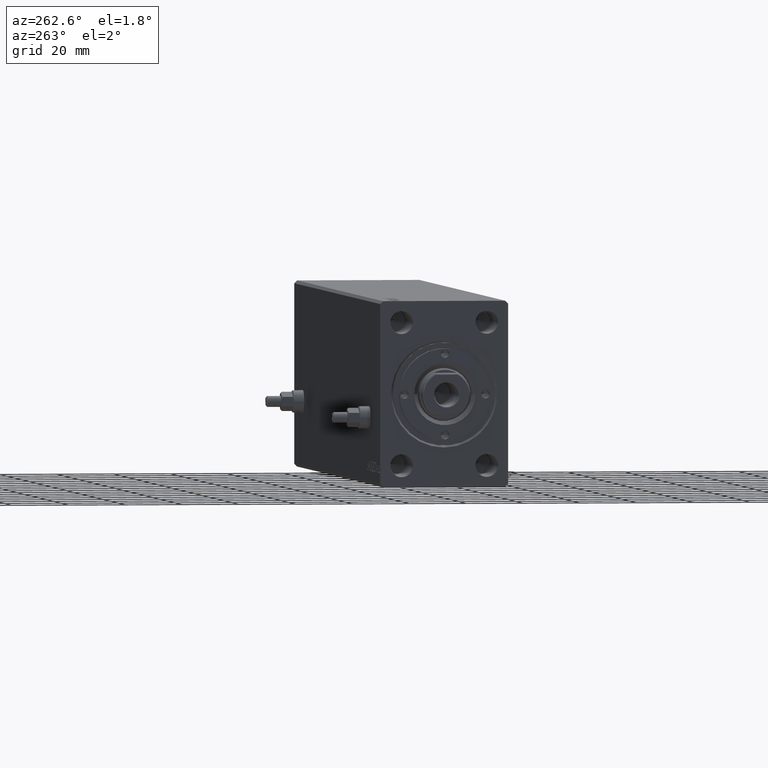
[diagram: clean part render]
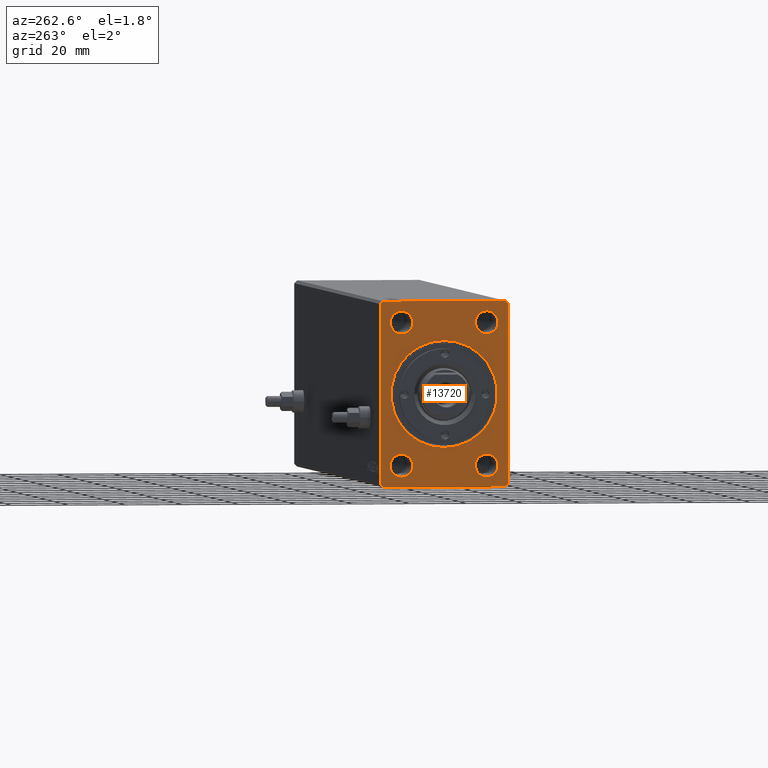
[diagram: same view with one face highlighted and labeled with its STEP entity id]
A machine part, auxiliary view. The second image highlights one B-rep face of the part: STEP entity #13720.
In plain terms, the highlighted planar face has unit normal (1, 0, 0).
Its self-contained STEP definition (entity closure, byte-faithful):
#371 = VERTEX_POINT ( 'NONE', #1277 ) ;
#896 = DIRECTION ( 'NONE',  ( 0.000000000000000000, 0.000000000000000000, -1.000000000000000000 ) ) ;
#1054 = EDGE_CURVE ( 'NONE', #43692, #16355, #37723, .T. ) ;
#1192 = VERTEX_POINT ( 'NONE', #22068 ) ;
#1215 = VECTOR ( 'NONE', #42430, 1000.000000000000114 ) ;
#1277 = CARTESIAN_POINT ( 'NONE',  ( 3.061616997868395467E-16, 15.00000000000000355, -20.99999999999999289 ) ) ;
#1659 = VECTOR ( 'NONE', #28322, 1000.000000000000000 ) ;
#2106 = VERTEX_POINT ( 'NONE', #34813 ) ;
#2249 = VERTEX_POINT ( 'NONE', #23564 ) ;
#2378 = CIRCLE ( 'NONE', #5300, 4.000000000000000000 ) ;
#2487 = VERTEX_POINT ( 'NONE', #5016 ) ;
#2623 = CIRCLE ( 'NONE', #28158, 4.000000000000000000 ) ;
#3327 = EDGE_LOOP ( 'NONE', ( #40066, #25803 ) ) ;
#3508 = EDGE_CURVE ( 'NONE', #35824, #371, #23383, .T. ) ;
#3944 = ORIENTED_EDGE ( 'NONE', *, *, #11543, .F. ) ;
#3945 = EDGE_LOOP ( 'NONE', ( #19233, #41041 ) ) ;
#4048 = DIRECTION ( 'NONE',  ( 0.000000000000000000, 0.000000000000000000, 1.000000000000000000 ) ) ;
#4630 = EDGE_CURVE ( 'NONE', #43960, #9886, #24921, .T. ) ;
#4927 = DIRECTION ( 'NONE',  ( 0.000000000000000000, 0.000000000000000000, 1.000000000000000000 ) ) ;
#4960 = ORIENTED_EDGE ( 'NONE', *, *, #7704, .F. ) ;
#5016 = CARTESIAN_POINT ( 'NONE',  ( 3.061616997868395467E-16, 15.00000000000000355, 21.00000000000000000 ) ) ;
#5300 = AXIS2_PLACEMENT_3D ( 'NONE', #7462, #17532, #4048 ) ;
#5448 = VERTEX_POINT ( 'NONE', #23191 ) ;
#5584 = DIRECTION ( 'NONE',  ( 0.000000000000000000, -0.7071067811865474617, -0.7071067811865474617 ) ) ;
#5741 = LINE ( 'NONE', #43912, #6750 ) ;
#6200 = DIRECTION ( 'NONE',  ( -1.000000000000000000, -0.000000000000000000, -0.000000000000000000 ) ) ;
#6664 = DIRECTION ( 'NONE',  ( 0.000000000000000000, 0.000000000000000000, -1.000000000000000000 ) ) ;
#6750 = VECTOR ( 'NONE', #44146, 1000.000000000000114 ) ;
#6881 = CARTESIAN_POINT ( 'NONE',  ( 0.000000000000000000, 22.49999999999999645, -31.50000000000000000 ) ) ;
#7462 = CARTESIAN_POINT ( 'NONE',  ( 3.061616997868395467E-16, 15.00000000000000355, 25.00000000000000000 ) ) ;
#7704 = EDGE_CURVE ( 'NONE', #14698, #38805, #29280, .T. ) ;
#7967 = CARTESIAN_POINT ( 'NONE',  ( 3.061616997868395467E-16, -14.99999999999999645, 28.99999999999999645 ) ) ;
#8222 = CARTESIAN_POINT ( 'NONE',  ( 3.061616997868395467E-16, 15.00000000000000355, -28.99999999999999289 ) ) ;
#8273 = CARTESIAN_POINT ( 'NONE',  ( 3.061616997868395467E-16, -14.99999999999999645, -24.99999999999999645 ) ) ;
#8637 = ORIENTED_EDGE ( 'NONE', *, *, #18984, .F. ) ;
#8977 = EDGE_CURVE ( 'NONE', #371, #35824, #33668, .T. ) ;
#9151 = CIRCLE ( 'NONE', #40548, 4.000000000000000000 ) ;
#9213 = AXIS2_PLACEMENT_3D ( 'NONE', #18417, #42213, #4927 ) ;
#9572 = AXIS2_PLACEMENT_3D ( 'NONE', #13895, #6200, #26994 ) ;
#9591 = CARTESIAN_POINT ( 'NONE',  ( 0.000000000000000000, -21.50000000000001776, -32.50000000000000711 ) ) ;
#9682 = CARTESIAN_POINT ( 'NONE',  ( 0.000000000000000000, -21.50000000000001421, 32.50000000000000000 ) ) ;
#9886 = VERTEX_POINT ( 'NONE', #33641 ) ;
#10057 = CARTESIAN_POINT ( 'NONE',  ( 0.000000000000000000, -21.50000000000001776, -32.50000000000000711 ) ) ;
#10112 = ORIENTED_EDGE ( 'NONE', *, *, #3508, .F. ) ;
#10530 = DIRECTION ( 'NONE',  ( 0.000000000000000000, 0.000000000000000000, 1.000000000000000000 ) ) ;
#10659 = DIRECTION ( 'NONE',  ( 0.000000000000000000, 1.000000000000000000, 1.613696256722610912E-16 ) ) ;
#10710 = DIRECTION ( 'NONE',  ( 1.000000000000000000, 0.000000000000000000, 0.000000000000000000 ) ) ;
#10873 = CARTESIAN_POINT ( 'NONE',  ( 0.000000000000000000, -22.50000000000001421, -31.50000000000000711 ) ) ;
#11543 = EDGE_CURVE ( 'NONE', #38805, #2249, #30937, .T. ) ;
#12160 = VERTEX_POINT ( 'NONE', #25360 ) ;
#12364 = EDGE_LOOP ( 'NONE', ( #18000, #10112 ) ) ;
#12874 = DIRECTION ( 'NONE',  ( 0.000000000000000000, 0.000000000000000000, 1.000000000000000000 ) ) ;
#13207 = VERTEX_POINT ( 'NONE', #34226 ) ;
#13720 = ADVANCED_FACE ( 'NONE', ( #14374, #24881, #14155, #38835, #35854, #28091 ), #42047, .F. ) ;
#13895 = CARTESIAN_POINT ( 'NONE',  ( 3.061616997868395467E-16, 15.00000000000000355, -24.99999999999999289 ) ) ;
#13931 = CARTESIAN_POINT ( 'NONE',  ( 0.000000000000000000, -22.50000000000001776, 31.50000000000000000 ) ) ;
#13933 = CARTESIAN_POINT ( 'NONE',  ( -1.084202172485504434E-16, 2.290089514405546166E-15, -18.69999999999996732 ) ) ;
#14155 = FACE_BOUND ( 'NONE', #12364, .T. ) ;
#14374 = FACE_BOUND ( 'NONE', #23950, .T. ) ;
#14698 = VERTEX_POINT ( 'NONE', #31085 ) ;
#14888 = AXIS2_PLACEMENT_3D ( 'NONE', #21448, #25321, #39269 ) ;
#15127 = EDGE_CURVE ( 'NONE', #5448, #13207, #2623, .T. ) ;
#15775 = CIRCLE ( 'NONE', #9213, 4.000000000000000000 ) ;
#15796 = CIRCLE ( 'NONE', #34792, 18.69999999999996732 ) ;
#16355 = VERTEX_POINT ( 'NONE', #43776 ) ;
#16683 = EDGE_CURVE ( 'NONE', #44528, #1192, #15796, .T. ) ;
#16830 = DIRECTION ( 'NONE',  ( -1.000000000000000000, -0.000000000000000000, -0.000000000000000000 ) ) ;
#16862 = VECTOR ( 'NONE', #10530, 1000.000000000000000 ) ;
#16878 = EDGE_CURVE ( 'NONE', #2487, #2106, #23827, .T. ) ;
#17334 = EDGE_CURVE ( 'NONE', #33244, #43692, #42211, .T. ) ;
#17532 = DIRECTION ( 'NONE',  ( -1.000000000000000000, -0.000000000000000000, -0.000000000000000000 ) ) ;
#17784 = CARTESIAN_POINT ( 'NONE',  ( 3.061616997868395467E-16, 15.00000000000000355, -24.99999999999999289 ) ) ;
#17920 = CIRCLE ( 'NONE', #37645, 4.000000000000000000 ) ;
#18000 = ORIENTED_EDGE ( 'NONE', *, *, #8977, .F. ) ;
#18417 = CARTESIAN_POINT ( 'NONE',  ( 3.061616997868395467E-16, -14.99999999999999645, 24.99999999999999645 ) ) ;
#18447 = ORIENTED_EDGE ( 'NONE', *, *, #1054, .F. ) ;
#18480 = CARTESIAN_POINT ( 'NONE',  ( 0.000000000000000000, 0.000000000000000000, 0.000000000000000000 ) ) ;
#18694 = DIRECTION ( 'NONE',  ( 0.000000000000000000, 0.7071067811865474617, 0.7071067811865474617 ) ) ;
#18938 = CARTESIAN_POINT ( 'NONE',  ( 0.000000000000000000, 22.49999999999999645, -31.50000000000000000 ) ) ;
#18984 = EDGE_CURVE ( 'NONE', #16355, #43960, #19601, .T. ) ;
#19019 = DIRECTION ( 'NONE',  ( -1.000000000000000000, -0.000000000000000000, -0.000000000000000000 ) ) ;
#19233 = ORIENTED_EDGE ( 'NONE', *, *, #15127, .F. ) ;
#19601 = LINE ( 'NONE', #43617, #39221 ) ;
#20079 = AXIS2_PLACEMENT_3D ( 'NONE', #18480, #10710, #896 ) ;
#21051 = DIRECTION ( 'NONE',  ( 1.000000000000000000, 0.000000000000000000, 0.000000000000000000 ) ) ;
#21321 = VECTOR ( 'NONE', #5584, 1000.000000000000114 ) ;
#21448 = CARTESIAN_POINT ( 'NONE',  ( 0.000000000000000000, 0.000000000000000000, 0.000000000000000000 ) ) ;
#22068 = CARTESIAN_POINT ( 'NONE',  ( -1.084202172485504434E-16, 0.000000000000000000, 18.69999999999996732 ) ) ;
#22446 = DIRECTION ( 'NONE',  ( 0.000000000000000000, 0.000000000000000000, 1.000000000000000000 ) ) ;
#23191 = CARTESIAN_POINT ( 'NONE',  ( 3.061616997868395467E-16, -14.99999999999999645, -20.99999999999999645 ) ) ;
#23281 = ORIENTED_EDGE ( 'NONE', *, *, #16878, .F. ) ;
#23383 = CIRCLE ( 'NONE', #33607, 4.000000000000000000 ) ;
#23564 = CARTESIAN_POINT ( 'NONE',  ( 0.000000000000000000, -22.50000000000001776, 31.50000000000000000 ) ) ;
#23827 = CIRCLE ( 'NONE', #28218, 4.000000000000000000 ) ;
#23950 = EDGE_LOOP ( 'NONE', ( #26348, #23281 ) ) ;
#24881 = FACE_BOUND ( 'NONE', #3945, .T. ) ;
#24921 = LINE ( 'NONE', #6881, #16862 ) ;
#25321 = DIRECTION ( 'NONE',  ( 1.000000000000000000, 0.000000000000000000, 0.000000000000000000 ) ) ;
#25330 = ORIENTED_EDGE ( 'NONE', *, *, #4630, .F. ) ;
#25360 = CARTESIAN_POINT ( 'NONE',  ( 3.061616997868395467E-16, -14.99999999999999645, 20.99999999999999645 ) ) ;
#25803 = ORIENTED_EDGE ( 'NONE', *, *, #37286, .F. ) ;
#26348 = ORIENTED_EDGE ( 'NONE', *, *, #30035, .F. ) ;
#26892 = CARTESIAN_POINT ( 'NONE',  ( 3.061616997868395467E-16, -14.99999999999999645, 24.99999999999999645 ) ) ;
#26994 = DIRECTION ( 'NONE',  ( 0.000000000000000000, 0.000000000000000000, 1.000000000000000000 ) ) ;
#27344 = DIRECTION ( 'NONE',  ( 0.000000000000000000, 0.000000000000000000, 1.000000000000000000 ) ) ;
#27837 = DIRECTION ( 'NONE',  ( 0.000000000000000000, 0.000000000000000000, 1.000000000000000000 ) ) ;
#28091 = FACE_OUTER_BOUND ( 'NONE', #33114, .T. ) ;
#28158 = AXIS2_PLACEMENT_3D ( 'NONE', #30474, #37794, #12874 ) ;
#28218 = AXIS2_PLACEMENT_3D ( 'NONE', #29251, #43202, #33146 ) ;
#28322 = DIRECTION ( 'NONE',  ( 0.000000000000000000, 5.507058653894625853E-17, -1.000000000000000000 ) ) ;
#29251 = CARTESIAN_POINT ( 'NONE',  ( 3.061616997868395467E-16, 15.00000000000000355, 25.00000000000000000 ) ) ;
#29280 = LINE ( 'NONE', #31204, #35918 ) ;
#30006 = ORIENTED_EDGE ( 'NONE', *, *, #16683, .T. ) ;
#30035 = EDGE_CURVE ( 'NONE', #2106, #2487, #2378, .T. ) ;
#30474 = CARTESIAN_POINT ( 'NONE',  ( 3.061616997868395467E-16, -14.99999999999999645, -24.99999999999999645 ) ) ;
#30499 = EDGE_LOOP ( 'NONE', ( #36061, #30006 ) ) ;
#30656 = EDGE_CURVE ( 'NONE', #2249, #33244, #32203, .T. ) ;
#30780 = VERTEX_POINT ( 'NONE', #7967 ) ;
#30937 = LINE ( 'NONE', #9682, #21321 ) ;
#31085 = CARTESIAN_POINT ( 'NONE',  ( 0.000000000000000000, 21.49999999999999645, 32.50000000000000000 ) ) ;
#31204 = CARTESIAN_POINT ( 'NONE',  ( 0.000000000000000000, 21.49999999999999645, 32.50000000000000000 ) ) ;
#31354 = VECTOR ( 'NONE', #10659, 1000.000000000000000 ) ;
#32203 = LINE ( 'NONE', #13931, #1659 ) ;
#32743 = ORIENTED_EDGE ( 'NONE', *, *, #17334, .F. ) ;
#33114 = EDGE_LOOP ( 'NONE', ( #39518, #25330, #8637, #18447, #32743, #42601, #3944, #4960 ) ) ;
#33146 = DIRECTION ( 'NONE',  ( 0.000000000000000000, 0.000000000000000000, 1.000000000000000000 ) ) ;
#33244 = VERTEX_POINT ( 'NONE', #37369 ) ;
#33607 = AXIS2_PLACEMENT_3D ( 'NONE', #17784, #38814, #27837 ) ;
#33641 = CARTESIAN_POINT ( 'NONE',  ( 0.000000000000000000, 22.49999999999999645, 31.50000000000000000 ) ) ;
#33668 = CIRCLE ( 'NONE', #9572, 4.000000000000000000 ) ;
#33960 = EDGE_CURVE ( 'NONE', #1192, #44528, #34612, .T. ) ;
#34226 = CARTESIAN_POINT ( 'NONE',  ( 3.061616997868395467E-16, -14.99999999999999645, -28.99999999999999645 ) ) ;
#34612 = CIRCLE ( 'NONE', #14888, 18.69999999999996732 ) ;
#34792 = AXIS2_PLACEMENT_3D ( 'NONE', #44400, #21051, #6664 ) ;
#34813 = CARTESIAN_POINT ( 'NONE',  ( 3.061616997868395467E-16, 15.00000000000000355, 29.00000000000000000 ) ) ;
#35824 = VERTEX_POINT ( 'NONE', #8222 ) ;
#35854 = FACE_BOUND ( 'NONE', #30499, .T. ) ;
#35918 = VECTOR ( 'NONE', #38739, 1000.000000000000000 ) ;
#36061 = ORIENTED_EDGE ( 'NONE', *, *, #33960, .T. ) ;
#37286 = EDGE_CURVE ( 'NONE', #12160, #30780, #9151, .T. ) ;
#37369 = CARTESIAN_POINT ( 'NONE',  ( 0.000000000000000000, -22.50000000000001421, -31.50000000000000711 ) ) ;
#37645 = AXIS2_PLACEMENT_3D ( 'NONE', #8273, #19019, #22446 ) ;
#37723 = LINE ( 'NONE', #9591, #31354 ) ;
#37794 = DIRECTION ( 'NONE',  ( -1.000000000000000000, -0.000000000000000000, -0.000000000000000000 ) ) ;
#38739 = DIRECTION ( 'NONE',  ( 0.000000000000000000, -1.000000000000000000, 0.000000000000000000 ) ) ;
#38805 = VERTEX_POINT ( 'NONE', #40915 ) ;
#38814 = DIRECTION ( 'NONE',  ( -1.000000000000000000, -0.000000000000000000, -0.000000000000000000 ) ) ;
#38835 = FACE_BOUND ( 'NONE', #3327, .T. ) ;
#39221 = VECTOR ( 'NONE', #18694, 1000.000000000000114 ) ;
#39269 = DIRECTION ( 'NONE',  ( 0.000000000000000000, 0.000000000000000000, -1.000000000000000000 ) ) ;
#39346 = EDGE_CURVE ( 'NONE', #30780, #12160, #15775, .T. ) ;
#39518 = ORIENTED_EDGE ( 'NONE', *, *, #44383, .F. ) ;
#40066 = ORIENTED_EDGE ( 'NONE', *, *, #39346, .F. ) ;
#40548 = AXIS2_PLACEMENT_3D ( 'NONE', #26892, #16830, #27344 ) ;
#40915 = CARTESIAN_POINT ( 'NONE',  ( 0.000000000000000000, -21.50000000000001421, 32.50000000000000000 ) ) ;
#41041 = ORIENTED_EDGE ( 'NONE', *, *, #41508, .F. ) ;
#41508 = EDGE_CURVE ( 'NONE', #13207, #5448, #17920, .T. ) ;
#42047 = PLANE ( 'NONE',  #20079 ) ;
#42211 = LINE ( 'NONE', #10873, #1215 ) ;
#42213 = DIRECTION ( 'NONE',  ( -1.000000000000000000, -0.000000000000000000, -0.000000000000000000 ) ) ;
#42430 = DIRECTION ( 'NONE',  ( 0.000000000000000000, 0.7071067811865451302, -0.7071067811865500152 ) ) ;
#42601 = ORIENTED_EDGE ( 'NONE', *, *, #30656, .F. ) ;
#43202 = DIRECTION ( 'NONE',  ( -1.000000000000000000, -0.000000000000000000, -0.000000000000000000 ) ) ;
#43617 = CARTESIAN_POINT ( 'NONE',  ( 0.000000000000000000, 21.49999999999999645, -32.50000000000000000 ) ) ;
#43692 = VERTEX_POINT ( 'NONE', #10057 ) ;
#43776 = CARTESIAN_POINT ( 'NONE',  ( 0.000000000000000000, 21.49999999999999645, -32.50000000000000000 ) ) ;
#43912 = CARTESIAN_POINT ( 'NONE',  ( 0.000000000000000000, 22.49999999999999645, 31.50000000000000000 ) ) ;
#43960 = VERTEX_POINT ( 'NONE', #18938 ) ;
#44146 = DIRECTION ( 'NONE',  ( 0.000000000000000000, -0.7071067811865474617, 0.7071067811865474617 ) ) ;
#44383 = EDGE_CURVE ( 'NONE', #9886, #14698, #5741, .T. ) ;
#44400 = CARTESIAN_POINT ( 'NONE',  ( 0.000000000000000000, 0.000000000000000000, 0.000000000000000000 ) ) ;
#44528 = VERTEX_POINT ( 'NONE', #13933 ) ;